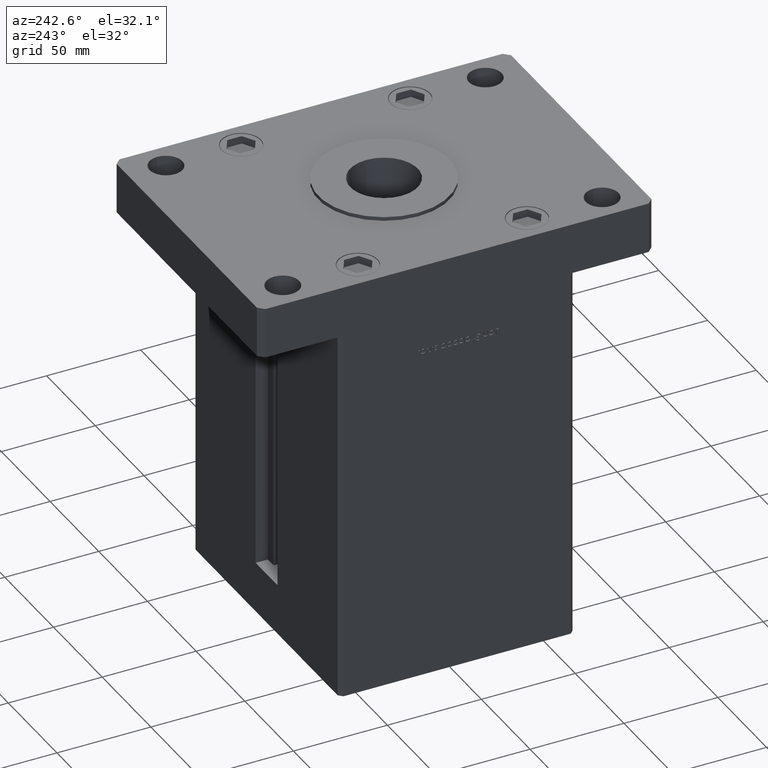
[diagram: clean part render]
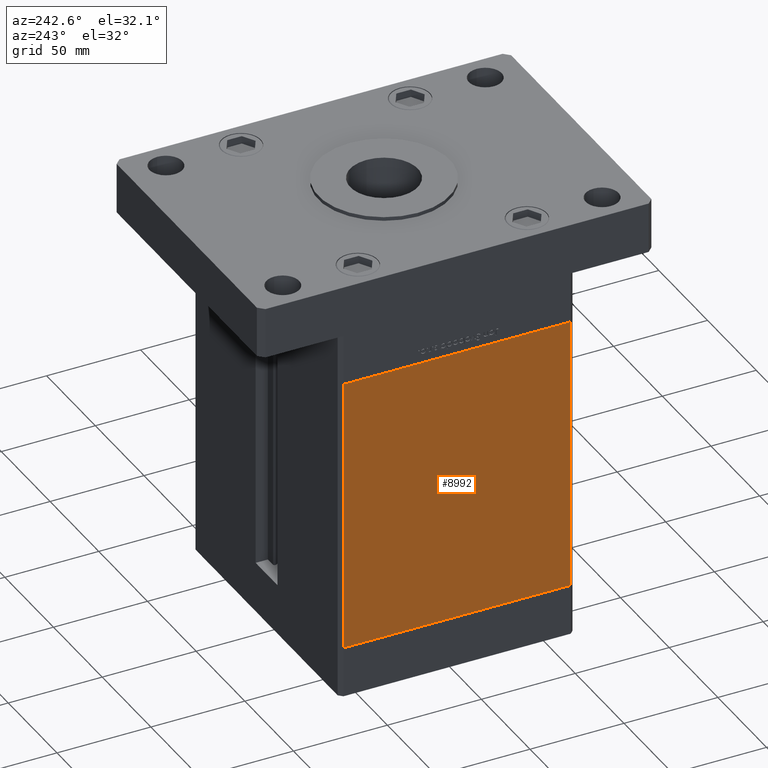
[diagram: same view with one face highlighted and labeled with its STEP entity id]
A machine part, auxiliary view. The second image highlights one B-rep face of the part: STEP entity #8992.
In plain terms, the highlighted planar face has unit normal (1, 0, 0).
Its self-contained STEP definition (entity closure, byte-faithful):
#3669 = DIRECTION ( 'NONE',  ( 1.000000000000000000, 2.293849224432141861E-16, -0.000000000000000000 ) ) ;
#4740 = ORIENTED_EDGE ( 'NONE', *, *, #43022, .F. ) ;
#5842 = LINE ( 'NONE', #17767, #35842 ) ;
#6216 = CARTESIAN_POINT ( 'NONE',  ( -74.99999999999998579, -60.50000000000000000, 147.0000000000000000 ) ) ;
#7378 = DIRECTION ( 'NONE',  ( 2.293849224432141861E-16, -1.000000000000000000, 0.000000000000000000 ) ) ;
#7726 = CARTESIAN_POINT ( 'NONE',  ( -75.00000000000001421, 60.50000000000000000, 147.0000000000000000 ) ) ;
#8992 = ADVANCED_FACE ( 'NONE', ( #32398 ), #44847, .F. ) ;
#10572 = EDGE_CURVE ( 'NONE', #29669, #18631, #5842, .T. ) ;
#15766 = LINE ( 'NONE', #48841, #43189 ) ;
#17193 = LINE ( 'NONE', #28614, #44212 ) ;
#17767 = CARTESIAN_POINT ( 'NONE',  ( -74.99999999999998579, -60.50000000000000000, 147.0000000000000000 ) ) ;
#18584 = CARTESIAN_POINT ( 'NONE',  ( -75.00000000000001421, 60.50000000000000000, 0.000000000000000000 ) ) ;
#18631 = VERTEX_POINT ( 'NONE', #23033 ) ;
#20181 = DIRECTION ( 'NONE',  ( -2.293849224432141861E-16, 1.000000000000000000, 0.000000000000000000 ) ) ;
#23033 = CARTESIAN_POINT ( 'NONE',  ( -74.99999999999998579, -60.50000000000000000, 0.000000000000000000 ) ) ;
#24362 = VERTEX_POINT ( 'NONE', #38069 ) ;
#24552 = ORIENTED_EDGE ( 'NONE', *, *, #47948, .T. ) ;
#26817 = VECTOR ( 'NONE', #34326, 1000.000000000000000 ) ;
#28555 = EDGE_LOOP ( 'NONE', ( #24552, #50107, #4740, #44176 ) ) ;
#28614 = CARTESIAN_POINT ( 'NONE',  ( -75.00000000000001421, 60.50000000000000000, 147.0000000000000000 ) ) ;
#29669 = VERTEX_POINT ( 'NONE', #6216 ) ;
#31475 = AXIS2_PLACEMENT_3D ( 'NONE', #7726, #3669, #20181 ) ;
#32398 = FACE_OUTER_BOUND ( 'NONE', #28555, .T. ) ;
#34326 = DIRECTION ( 'NONE',  ( 2.293849224432141861E-16, -1.000000000000000000, 0.000000000000000000 ) ) ;
#35842 = VECTOR ( 'NONE', #51370, 1000.000000000000000 ) ;
#38069 = CARTESIAN_POINT ( 'NONE',  ( -75.00000000000001421, 60.50000000000000000, 147.0000000000000000 ) ) ;
#43022 = EDGE_CURVE ( 'NONE', #24362, #29669, #15766, .T. ) ;
#43189 = VECTOR ( 'NONE', #7378, 1000.000000000000000 ) ;
#44176 = ORIENTED_EDGE ( 'NONE', *, *, #53038, .T. ) ;
#44212 = VECTOR ( 'NONE', #45657, 1000.000000000000000 ) ;
#44847 = PLANE ( 'NONE',  #31475 ) ;
#45356 = CARTESIAN_POINT ( 'NONE',  ( -75.00000000000001421, 60.50000000000000000, 0.000000000000000000 ) ) ;
#45657 = DIRECTION ( 'NONE',  ( -0.000000000000000000, -0.000000000000000000, -1.000000000000000000 ) ) ;
#47948 = EDGE_CURVE ( 'NONE', #50665, #18631, #50595, .T. ) ;
#48841 = CARTESIAN_POINT ( 'NONE',  ( -75.00000000000001421, 60.50000000000000000, 147.0000000000000000 ) ) ;
#50107 = ORIENTED_EDGE ( 'NONE', *, *, #10572, .F. ) ;
#50595 = LINE ( 'NONE', #18584, #26817 ) ;
#50665 = VERTEX_POINT ( 'NONE', #45356 ) ;
#51370 = DIRECTION ( 'NONE',  ( -0.000000000000000000, -0.000000000000000000, -1.000000000000000000 ) ) ;
#53038 = EDGE_CURVE ( 'NONE', #24362, #50665, #17193, .T. ) ;